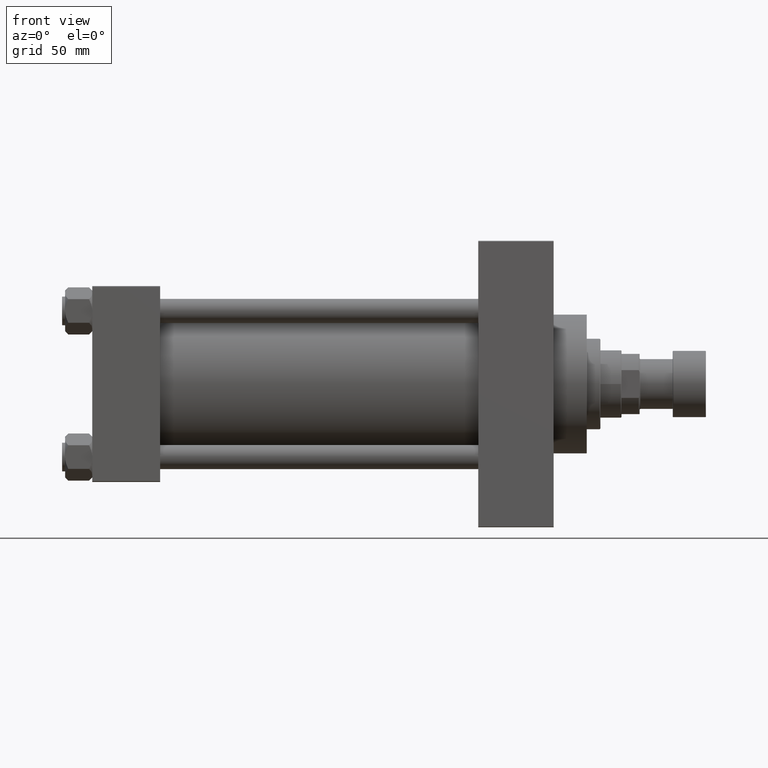
[diagram: clean part render]
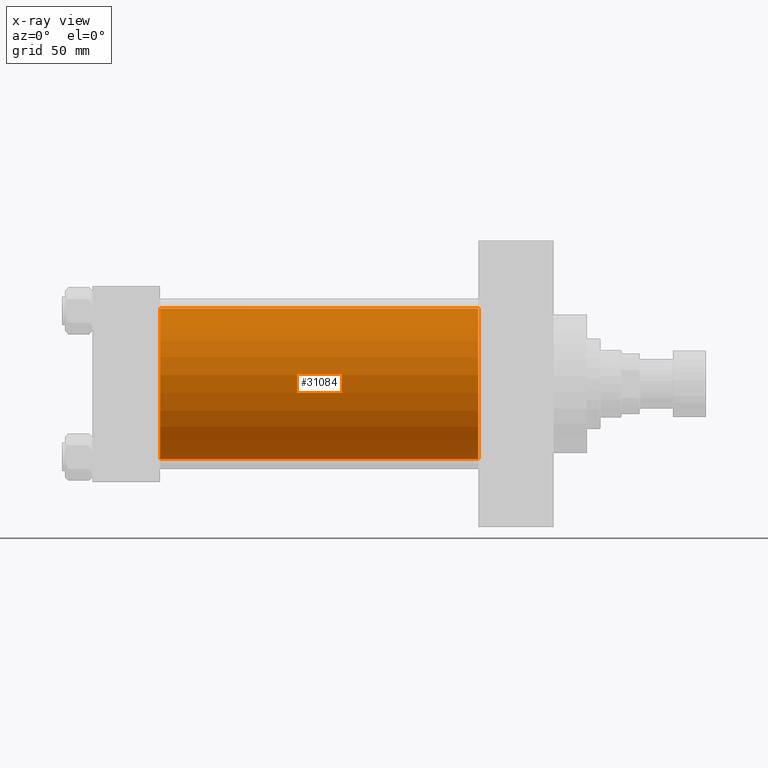
[diagram: x-ray — body ghosted, one internal face saturated and labeled with its STEP entity id]
A machine part, front view, then the same camera in x-ray: the body is ghosted and one INTERNAL B-rep face — a face not visible from any outside direction — is saturated and labeled: STEP entity #31084.
In plain terms, the highlighted cylindrical surface (partial cylindrical patch) has radius 50 mm, axis along (-1, -0, -0).
Its self-contained STEP definition (entity closure, byte-faithful):
#1732 = VERTEX_POINT ( 'NONE', #22505 ) ;
#7638 = DIRECTION ( 'NONE',  ( 1.000000000000000000, 0.000000000000000000, 0.000000000000000000 ) ) ;
#9137 = EDGE_CURVE ( 'NONE', #9163, #17725, #20924, .T. ) ;
#9163 = VERTEX_POINT ( 'NONE', #18814 ) ;
#10235 = LINE ( 'NONE', #21399, #38492 ) ;
#11477 = EDGE_CURVE ( 'NONE', #1732, #25404, #16200, .T. ) ;
#12793 = FACE_OUTER_BOUND ( 'NONE', #24634, .T. ) ;
#12831 = CARTESIAN_POINT ( 'NONE',  ( 45.00000000000000000, 3.521148781771555838E-15, -50.00000000000000000 ) ) ;
#15053 = ORIENTED_EDGE ( 'NONE', *, *, #11477, .F. ) ;
#16200 = CIRCLE ( 'NONE', #43366, 50.00000000000000000 ) ;
#17063 = ORIENTED_EDGE ( 'NONE', *, *, #9137, .T. ) ;
#17725 = VERTEX_POINT ( 'NONE', #21385 ) ;
#18814 = CARTESIAN_POINT ( 'NONE',  ( 256.0000000000000000, -2.602085213965210642E-15, 50.00000000000000000 ) ) ;
#19366 = ORIENTED_EDGE ( 'NONE', *, *, #44887, .F. ) ;
#20924 = CIRCLE ( 'NONE', #34875, 50.00000000000000000 ) ;
#21385 = CARTESIAN_POINT ( 'NONE',  ( 256.0000000000000000, 3.521148781771555838E-15, -50.00000000000000000 ) ) ;
#21399 = CARTESIAN_POINT ( 'NONE',  ( 256.0000000000000000, -2.602085213965210642E-15, 50.00000000000000000 ) ) ;
#21430 = VECTOR ( 'NONE', #39155, 1000.000000000000000 ) ;
#22215 = CARTESIAN_POINT ( 'NONE',  ( 256.0000000000000000, -2.602085213965210642E-15, 0.000000000000000000 ) ) ;
#22505 = CARTESIAN_POINT ( 'NONE',  ( 45.00000000000000000, -2.602085213965210642E-15, 50.00000000000000000 ) ) ;
#24334 = CARTESIAN_POINT ( 'NONE',  ( 256.0000000000000000, 3.521148781771555838E-15, -50.00000000000000000 ) ) ;
#24634 = EDGE_LOOP ( 'NONE', ( #17063, #37086, #15053, #19366 ) ) ;
#25404 = VERTEX_POINT ( 'NONE', #12831 ) ;
#26061 = CARTESIAN_POINT ( 'NONE',  ( 45.00000000000000000, -2.602085213965210642E-15, 0.000000000000000000 ) ) ;
#28586 = DIRECTION ( 'NONE',  ( 0.000000000000000000, 0.000000000000000000, 1.000000000000000000 ) ) ;
#28999 = DIRECTION ( 'NONE',  ( 0.000000000000000000, 0.000000000000000000, -1.000000000000000000 ) ) ;
#31084 = ADVANCED_FACE ( 'NONE', ( #12793 ), #46817, .F. ) ;
#31504 = DIRECTION ( 'NONE',  ( -1.000000000000000000, -0.000000000000000000, -0.000000000000000000 ) ) ;
#34875 = AXIS2_PLACEMENT_3D ( 'NONE', #22215, #7638, #44816 ) ;
#35049 = AXIS2_PLACEMENT_3D ( 'NONE', #39039, #31504, #28586 ) ;
#35992 = LINE ( 'NONE', #24334, #21430 ) ;
#36221 = DIRECTION ( 'NONE',  ( -1.000000000000000000, -0.000000000000000000, -0.000000000000000000 ) ) ;
#36524 = DIRECTION ( 'NONE',  ( 1.000000000000000000, 0.000000000000000000, 0.000000000000000000 ) ) ;
#37086 = ORIENTED_EDGE ( 'NONE', *, *, #44707, .T. ) ;
#38492 = VECTOR ( 'NONE', #36221, 1000.000000000000000 ) ;
#39039 = CARTESIAN_POINT ( 'NONE',  ( 256.0000000000000000, -2.602085213965210642E-15, 0.000000000000000000 ) ) ;
#39155 = DIRECTION ( 'NONE',  ( -1.000000000000000000, -0.000000000000000000, -0.000000000000000000 ) ) ;
#43366 = AXIS2_PLACEMENT_3D ( 'NONE', #26061, #36524, #28999 ) ;
#44707 = EDGE_CURVE ( 'NONE', #17725, #25404, #35992, .T. ) ;
#44816 = DIRECTION ( 'NONE',  ( 0.000000000000000000, 0.000000000000000000, -1.000000000000000000 ) ) ;
#44887 = EDGE_CURVE ( 'NONE', #9163, #1732, #10235, .T. ) ;
#46817 = CYLINDRICAL_SURFACE ( 'NONE', #35049, 50.00000000000000000 ) ;